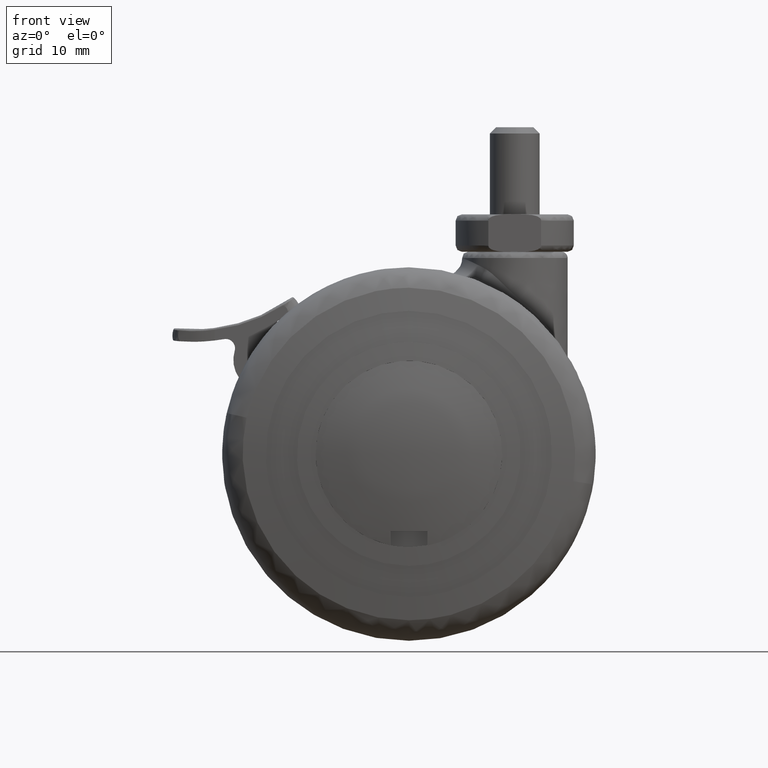
[diagram: clean part render]
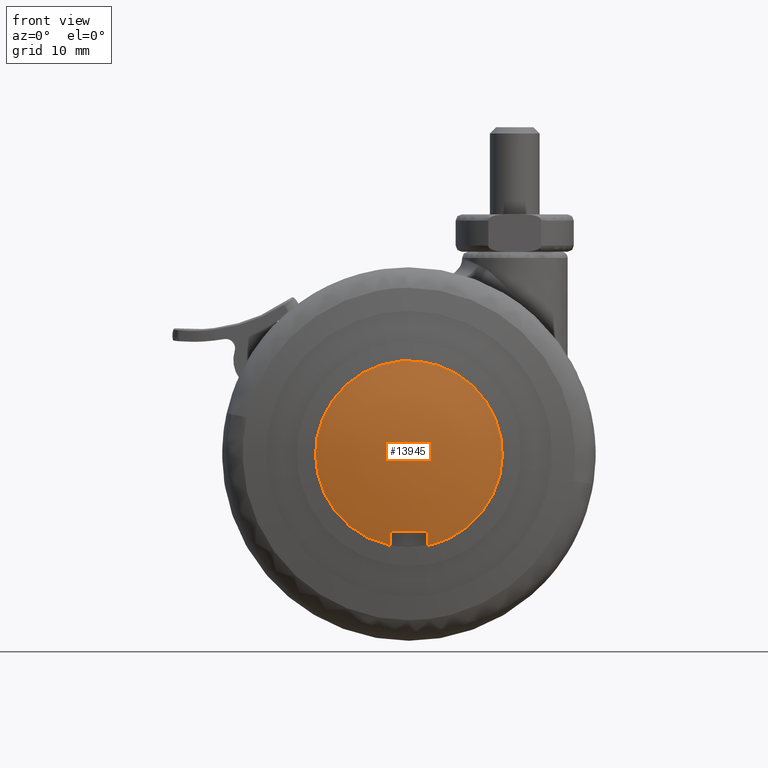
[diagram: same view with one face highlighted and labeled with its STEP entity id]
A machine part, front view. The second image highlights one B-rep face of the part: STEP entity #13945.
In plain terms, the highlighted face is a freeform B-spline surface patch.
Its self-contained STEP definition (entity closure, byte-faithful):
#11826=CARTESIAN_POINT('',(3.0,-23.033229668414350,-12.400000000000000));
#11827=VERTEX_POINT('',#11826);
#11828=CARTESIAN_POINT('',(-3.0,-23.033229668414350,-12.400000000000000));
#11829=VERTEX_POINT('',#11828);
#11830=CARTESIAN_POINT('',(3.000000000000015,-23.033229668414350,-12.400000000000000));
#11831=CARTESIAN_POINT('',(2.168404E-014,-23.186739989781426,-12.399999999999997));
#11832=CARTESIAN_POINT('',(-2.999999999999993,-23.033229668414350,-12.400000000000000));
#11840=(BOUNDED_CURVE()B_SPLINE_CURVE(2,(#11830,#11831,#11832),.UNSPECIFIED.,.F.,.U.)CURVE()GEOMETRIC_REPRESENTATION_ITEM()QUASI_UNIFORM_CURVE()RATIONAL_B_SPLINE_CURVE((1.0,0.998693375438973,1.0))REPRESENTATION_ITEM(''));
#11841=EDGE_CURVE('',#11827,#11829,#11840,.T.);
#11870=CARTESIAN_POINT('',(3.0,-22.500000193105048,-14.696938456699060));
#11871=VERTEX_POINT('',#11870);
#11872=CARTESIAN_POINT('',(3.0,-22.500000193105048,-14.696938456699060));
#11873=CARTESIAN_POINT('',(2.999999999999999,-22.789215183001911,-13.553715829802712));
#11874=CARTESIAN_POINT('',(3.0,-23.033229668414268,-12.399999999999990));
#11882=(BOUNDED_CURVE()B_SPLINE_CURVE(2,(#11872,#11873,#11874),.UNSPECIFIED.,.F.,.U.)CURVE()GEOMETRIC_REPRESENTATION_ITEM()QUASI_UNIFORM_CURVE()RATIONAL_B_SPLINE_CURVE((1.0,0.999806432813241,1.0))REPRESENTATION_ITEM(''));
#11883=EDGE_CURVE('',#11871,#11827,#11882,.T.);
#11906=CARTESIAN_POINT('',(-3.0,-22.500000193105048,-14.696938456699060));
#11907=VERTEX_POINT('',#11906);
#11908=CARTESIAN_POINT('',(-3.0,-23.033229668414268,-12.399999999999970));
#11909=CARTESIAN_POINT('',(-3.0,-22.789215183001925,-13.553715829802664));
#11910=CARTESIAN_POINT('',(-3.0,-22.500000193105048,-14.696938456699060));
#11918=(BOUNDED_CURVE()B_SPLINE_CURVE(2,(#11908,#11909,#11910),.UNSPECIFIED.,.F.,.U.)CURVE()GEOMETRIC_REPRESENTATION_ITEM()QUASI_UNIFORM_CURVE()RATIONAL_B_SPLINE_CURVE((1.0,0.999806432813240,1.0))REPRESENTATION_ITEM(''));
#11919=EDGE_CURVE('',#11829,#11907,#11918,.T.);
#13891=CARTESIAN_POINT('',(-3.0,-22.500000193105048,-14.696938456699060));
#13892=CARTESIAN_POINT('',(-16.287048005877153,-22.500000193111298,-11.984731139843753));
#13893=CARTESIAN_POINT('',(-14.924042295076861,-22.500000193111301,1.507634430078121));
#13894=CARTESIAN_POINT('',(-13.561036584276568,-22.500000193111298,14.999999999999998));
#13895=CARTESIAN_POINT('',(0.0,-22.500000193111301,15.0));
#13896=CARTESIAN_POINT('',(13.561036584276568,-22.500000193111298,14.999999999999998));
#13897=CARTESIAN_POINT('',(14.924042295076861,-22.500000193111301,1.507634430078128));
#13898=CARTESIAN_POINT('',(16.287048005877153,-22.500000193111298,-11.984731139843747));
#13899=CARTESIAN_POINT('',(3.0,-22.500000193105048,-14.696938456699060));
#13907=(BOUNDED_CURVE()B_SPLINE_CURVE(2,(#13891,#13892,#13893,#13894,#13895,#13896,#13897,#13898,#13899),.UNSPECIFIED.,.F.,.U.)B_SPLINE_CURVE_WITH_KNOTS((3,2,2,2,3),(0.0,0.250000000000000,0.500000000000000,0.750000000000000,1.0),.UNSPECIFIED.)CURVE()GEOMETRIC_REPRESENTATION_ITEM()RATIONAL_B_SPLINE_CURVE((1.0,0.741791399924941,1.0,0.741791399924941,1.0,0.741791399924941,1.0,0.741791399924941,1.0))REPRESENTATION_ITEM(''));
#13908=EDGE_CURVE('',#11907,#11871,#13907,.T.);
#13915=CARTESIAN_POINT('',(-16.098346467538715,-19.987903132292345,-15.855974009386893));
#13916=CARTESIAN_POINT('',(-8.202931159676842,-22.195516713013962,-16.133352820747060));
#13917=CARTESIAN_POINT('',(8.202930561120420,-22.195516713013962,-16.133352820747049));
#13918=CARTESIAN_POINT('',(16.098345336901620,-19.987903448426390,-15.855974049108001));
#13919=CARTESIAN_POINT('',(-16.445717487160895,-22.287371305518388,-7.442574693214092));
#13920=CARTESIAN_POINT('',(-8.383390024889796,-24.588442385695281,-7.561804526654255));
#13921=CARTESIAN_POINT('',(8.383389413165542,-24.588442385695281,-7.561804526654255));
#13922=CARTESIAN_POINT('',(16.445716333097600,-22.287371634899916,-7.442574710280973));
#13923=CARTESIAN_POINT('',(-16.445717487160895,-21.925092315760146,8.832047118799208));
#13924=CARTESIAN_POINT('',(-8.383390024889796,-24.219090781384001,9.030539621808934));
#13925=CARTESIAN_POINT('',(8.383389413165542,-24.219090781384001,9.030539621808934));
#13926=CARTESIAN_POINT('',(16.445716333097600,-21.925092644129272,8.832047147211968));
#13927=CARTESIAN_POINT('',(-16.184465571661647,-19.893092356467758,16.098522441003045));
#13928=CARTESIAN_POINT('',(-8.247656069661629,-22.110921546133486,16.433364579712762));
#13929=CARTESIAN_POINT('',(8.247655467841693,-22.110921546133486,16.433364579712762));
#13930=CARTESIAN_POINT('',(16.184464435212977,-19.893092674032257,16.098522488948113));
#13938=(BOUNDED_SURFACE()B_SPLINE_SURFACE(2,2,((#13915,#13919,#13923,#13927),(#13916,#13920,#13924,#13928),(#13917,#13921,#13925,#13929),(#13918,#13922,#13926,#13930)),.UNSPECIFIED.,.F.,.F.,.U.)B_SPLINE_SURFACE_WITH_KNOTS((3,1,3),(3,1,3),(14.482770024585720,30.682292575586398,46.881813944530492),(13.485859606695181,30.682292575586398,45.555778767633441),.UNSPECIFIED.)GEOMETRIC_REPRESENTATION_ITEM()RATIONAL_B_SPLINE_SURFACE(((1.041521878261768,1.019522563419284,1.019522563419284,1.035979839775345),(1.021999314842484,1.0,1.0,1.016457276356061),(1.021999314842484,1.0,1.0,1.016457276356061),(1.041521875412700,1.019522560570215,1.019522560570215,1.035979836926277)))REPRESENTATION_ITEM('')SURFACE());
#13939=ORIENTED_EDGE('',*,*,#11919,.F.);
#13940=ORIENTED_EDGE('',*,*,#11841,.F.);
#13941=ORIENTED_EDGE('',*,*,#11883,.F.);
#13942=ORIENTED_EDGE('',*,*,#13908,.F.);
#13943=EDGE_LOOP('',(#13939,#13940,#13941,#13942));
#13944=FACE_OUTER_BOUND('',#13943,.T.);
#13945=ADVANCED_FACE('',(#13944),#13938,.T.);